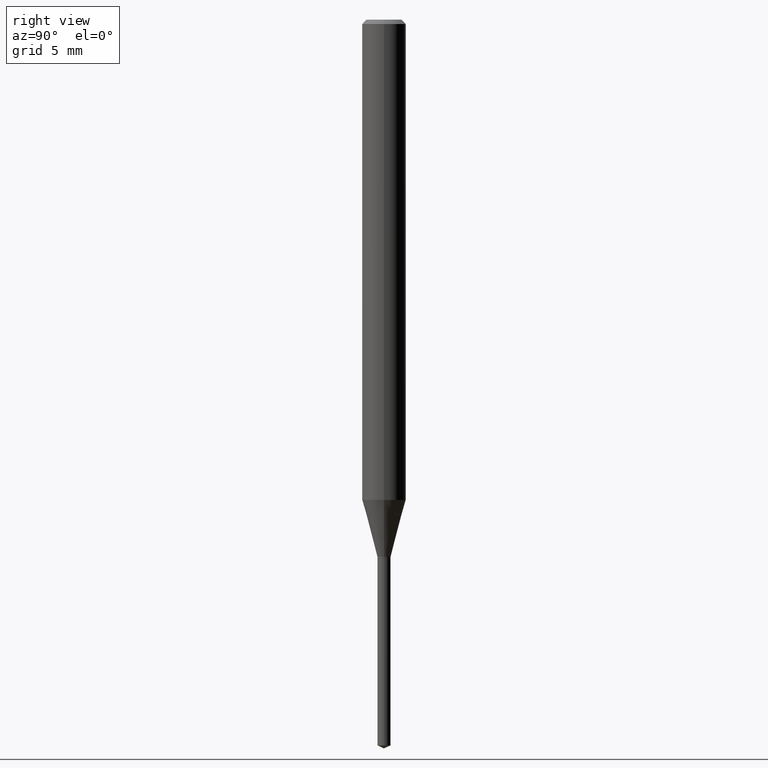
[diagram: clean part render]
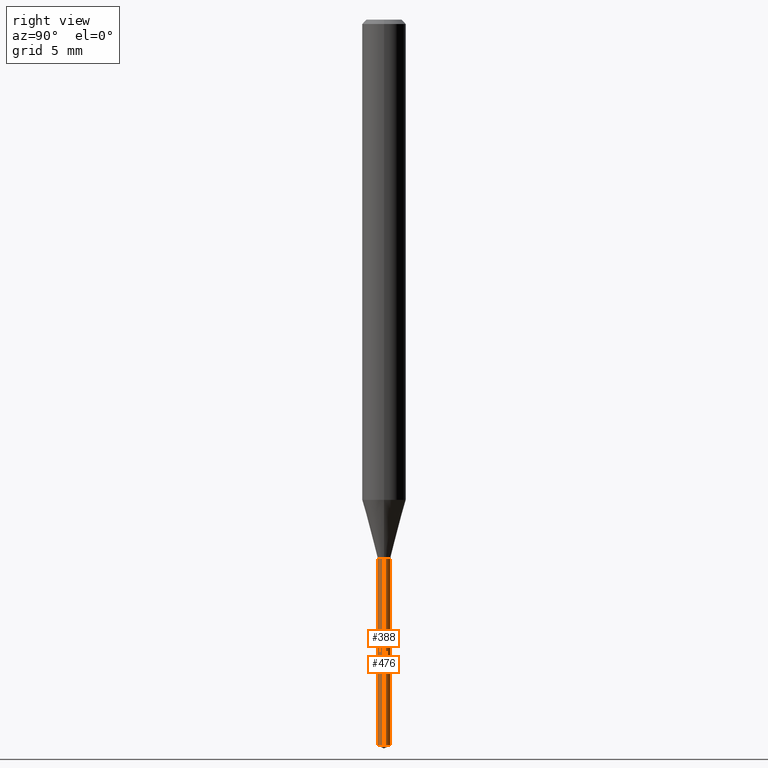
[diagram: same view with one multi-face feature highlighted, each face labeled with its STEP entity id]
A machine part, right view. The highlighted faces form ONE feature: a constant-radius fillet chain: 2 tangent blend faces with common blend radius 0.4496 mm. The faces share edges in the B-rep.
Their STEP definitions:
[1] entity #476 (Cylinder):
#13 = DIRECTION ( 'NONE',  ( -2.445468806185136877E-29, 3.491481338843145188E-15, 1.000000000000000000 ) ) ;
#17 = AXIS2_PLACEMENT_3D ( 'NONE', #85, #200, #126 ) ;
#51 = DIRECTION ( 'NONE',  ( -2.445468806185136597E-29, 3.491481338843145583E-15, 1.000000000000000000 ) ) ;
#69 = VERTEX_POINT ( 'NONE', #483 ) ;
#73 = ORIENTED_EDGE ( 'NONE', *, *, #137, .F. ) ;
#77 = EDGE_LOOP ( 'NONE', ( #349, #194, #382, #73 ) ) ;
#85 = CARTESIAN_POINT ( 'NONE',  ( 3.562314409969888354E-29, -5.086040866292809657E-15, -1.456699999999999884 ) ) ;
#98 = CIRCLE ( 'NONE', #17, 0.01770000000000000046 ) ;
#112 = VERTEX_POINT ( 'NONE', #177 ) ;
#117 = VERTEX_POINT ( 'NONE', #201 ) ;
#126 = DIRECTION ( 'NONE',  ( 1.000000000000000000, -6.982962677686271444E-15, 0.000000000000000000 ) ) ;
#134 = FACE_OUTER_BOUND ( 'NONE', #77, .T. ) ;
#137 = EDGE_CURVE ( 'NONE', #112, #342, #325, .T. ) ;
#156 = DIRECTION ( 'NONE',  ( 1.000000000000000000, -6.982962677686271444E-15, 0.000000000000000000 ) ) ;
#165 = CARTESIAN_POINT ( 'NONE',  ( 0.01770000000000000046, -5.209639305687856843E-15, -1.456699999999999884 ) ) ;
#177 = CARTESIAN_POINT ( 'NONE',  ( 0.01770000000000000046, -6.967762005494819983E-15, -1.960246354450656536 ) ) ;
#187 = AXIS2_PLACEMENT_3D ( 'NONE', #306, #337, #156 ) ;
#194 = ORIENTED_EDGE ( 'NONE', *, *, #278, .T. ) ;
#200 = DIRECTION ( 'NONE',  ( -2.445468806185136597E-29, 3.491481338843145583E-15, 1.000000000000000000 ) ) ;
#201 = CARTESIAN_POINT ( 'NONE',  ( -0.01770000000000000046, -5.839336151966753145E-15, -1.456699999999999884 ) ) ;
#256 = DIRECTION ( 'NONE',  ( -2.445468806185136877E-29, 3.491481338843145188E-15, 1.000000000000000000 ) ) ;
#278 = EDGE_CURVE ( 'NONE', #69, #117, #310, .T. ) ;
#281 = CYLINDRICAL_SURFACE ( 'NONE', #369, 0.01770000000000000046 ) ;
#290 = EDGE_CURVE ( 'NONE', #342, #117, #98, .T. ) ;
#291 = CARTESIAN_POINT ( 'NONE',  ( 0.01770000000000000046, -5.209639305687856843E-15, -1.456699999999999884 ) ) ;
#306 = CARTESIAN_POINT ( 'NONE',  ( 4.793721312247213410E-29, -6.844163566099774374E-15, -1.960246354450656536 ) ) ;
#308 = CIRCLE ( 'NONE', #187, 0.01770000000000000046 ) ;
#310 = LINE ( 'NONE', #426, #443 ) ;
#317 = CARTESIAN_POINT ( 'NONE',  ( 3.562314409969888354E-29, -5.086040866292809657E-15, -1.456699999999999884 ) ) ;
#318 = EDGE_CURVE ( 'NONE', #112, #69, #308, .T. ) ;
#325 = LINE ( 'NONE', #291, #486 ) ;
#337 = DIRECTION ( 'NONE',  ( -2.445468806185136597E-29, 3.491481338843145583E-15, 1.000000000000000000 ) ) ;
#342 = VERTEX_POINT ( 'NONE', #165 ) ;
#349 = ORIENTED_EDGE ( 'NONE', *, *, #318, .T. ) ;
#360 = DIRECTION ( 'NONE',  ( 1.000000000000000000, -6.982962677686271444E-15, 0.000000000000000000 ) ) ;
#369 = AXIS2_PLACEMENT_3D ( 'NONE', #317, #51, #360 ) ;
#382 = ORIENTED_EDGE ( 'NONE', *, *, #290, .F. ) ;
#426 = CARTESIAN_POINT ( 'NONE',  ( -0.01770000000000000046, -4.960274802063271576E-15, -1.456699999999999884 ) ) ;
#443 = VECTOR ( 'NONE', #13, 39.37007874015748143 ) ;
#476 = ADVANCED_FACE ( 'NONE', ( #134 ), #281, .T. ) ;
#483 = CARTESIAN_POINT ( 'NONE',  ( -0.01770000000000000046, -6.718397501870236293E-15, -1.960246354450656536 ) ) ;
#486 = VECTOR ( 'NONE', #256, 39.37007874015748143 ) ;
[2] entity #388 (Cylinder):
#13 = DIRECTION ( 'NONE',  ( -2.445468806185136877E-29, 3.491481338843145188E-15, 1.000000000000000000 ) ) ;
#14 = EDGE_CURVE ( 'NONE', #117, #342, #336, .T. ) ;
#28 = ORIENTED_EDGE ( 'NONE', *, *, #278, .F. ) ;
#39 = FACE_OUTER_BOUND ( 'NONE', #357, .T. ) ;
#69 = VERTEX_POINT ( 'NONE', #483 ) ;
#112 = VERTEX_POINT ( 'NONE', #177 ) ;
#117 = VERTEX_POINT ( 'NONE', #201 ) ;
#118 = CYLINDRICAL_SURFACE ( 'NONE', #125, 0.01770000000000000046 ) ;
#123 = DIRECTION ( 'NONE',  ( 1.000000000000000000, -6.982962677686271444E-15, 0.000000000000000000 ) ) ;
#125 = AXIS2_PLACEMENT_3D ( 'NONE', #277, #269, #416 ) ;
#128 = DIRECTION ( 'NONE',  ( -2.445468806185136597E-29, 3.491481338843145583E-15, 1.000000000000000000 ) ) ;
#137 = EDGE_CURVE ( 'NONE', #112, #342, #325, .T. ) ;
#162 = ORIENTED_EDGE ( 'NONE', *, *, #14, .F. ) ;
#165 = CARTESIAN_POINT ( 'NONE',  ( 0.01770000000000000046, -5.209639305687856843E-15, -1.456699999999999884 ) ) ;
#177 = CARTESIAN_POINT ( 'NONE',  ( 0.01770000000000000046, -6.967762005494819983E-15, -1.960246354450656536 ) ) ;
#195 = CIRCLE ( 'NONE', #398, 0.01770000000000000046 ) ;
#201 = CARTESIAN_POINT ( 'NONE',  ( -0.01770000000000000046, -5.839336151966753145E-15, -1.456699999999999884 ) ) ;
#220 = AXIS2_PLACEMENT_3D ( 'NONE', #304, #463, #123 ) ;
#226 = ORIENTED_EDGE ( 'NONE', *, *, #409, .T. ) ;
#233 = CARTESIAN_POINT ( 'NONE',  ( 4.793721312247213410E-29, -6.844163566099774374E-15, -1.960246354450656536 ) ) ;
#256 = DIRECTION ( 'NONE',  ( -2.445468806185136877E-29, 3.491481338843145188E-15, 1.000000000000000000 ) ) ;
#269 = DIRECTION ( 'NONE',  ( -2.445468806185136597E-29, 3.491481338843145583E-15, 1.000000000000000000 ) ) ;
#277 = CARTESIAN_POINT ( 'NONE',  ( 3.562314409969888354E-29, -5.086040866292809657E-15, -1.456699999999999884 ) ) ;
#278 = EDGE_CURVE ( 'NONE', #69, #117, #310, .T. ) ;
#291 = CARTESIAN_POINT ( 'NONE',  ( 0.01770000000000000046, -5.209639305687856843E-15, -1.456699999999999884 ) ) ;
#304 = CARTESIAN_POINT ( 'NONE',  ( 3.562314409969888354E-29, -5.086040866292809657E-15, -1.456699999999999884 ) ) ;
#310 = LINE ( 'NONE', #426, #443 ) ;
#325 = LINE ( 'NONE', #291, #486 ) ;
#336 = CIRCLE ( 'NONE', #220, 0.01770000000000000046 ) ;
#342 = VERTEX_POINT ( 'NONE', #165 ) ;
#357 = EDGE_LOOP ( 'NONE', ( #28, #226, #451, #162 ) ) ;
#388 = ADVANCED_FACE ( 'NONE', ( #39 ), #118, .T. ) ;
#398 = AXIS2_PLACEMENT_3D ( 'NONE', #233, #128, #465 ) ;
#409 = EDGE_CURVE ( 'NONE', #69, #112, #195, .T. ) ;
#416 = DIRECTION ( 'NONE',  ( 1.000000000000000000, -6.982962677686271444E-15, 0.000000000000000000 ) ) ;
#426 = CARTESIAN_POINT ( 'NONE',  ( -0.01770000000000000046, -4.960274802063271576E-15, -1.456699999999999884 ) ) ;
#443 = VECTOR ( 'NONE', #13, 39.37007874015748143 ) ;
#451 = ORIENTED_EDGE ( 'NONE', *, *, #137, .T. ) ;
#463 = DIRECTION ( 'NONE',  ( -2.445468806185136597E-29, 3.491481338843145583E-15, 1.000000000000000000 ) ) ;
#465 = DIRECTION ( 'NONE',  ( 1.000000000000000000, -6.982962677686271444E-15, 0.000000000000000000 ) ) ;
#483 = CARTESIAN_POINT ( 'NONE',  ( -0.01770000000000000046, -6.718397501870236293E-15, -1.960246354450656536 ) ) ;
#486 = VECTOR ( 'NONE', #256, 39.37007874015748143 ) ;